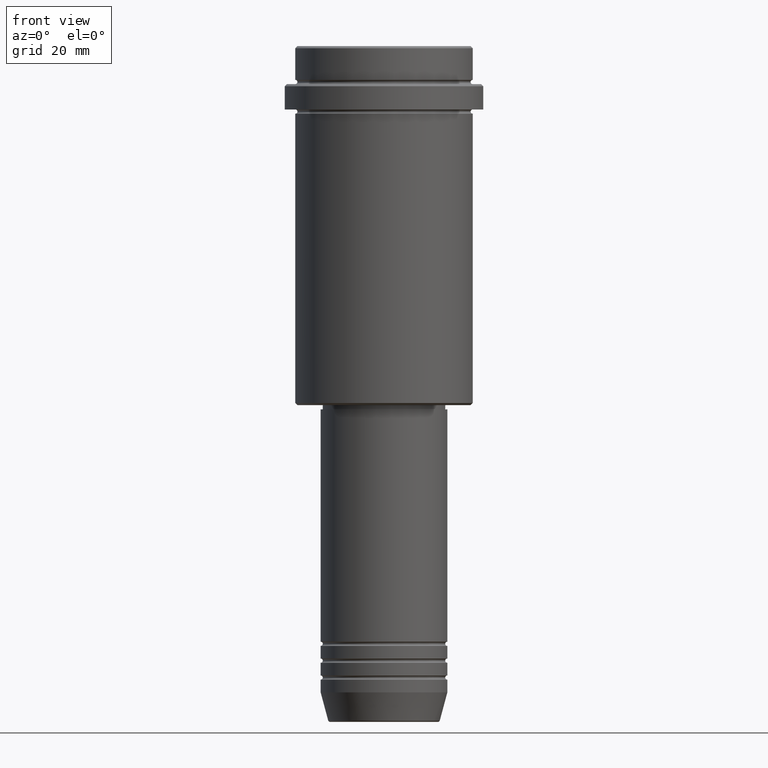
[diagram: clean part render]
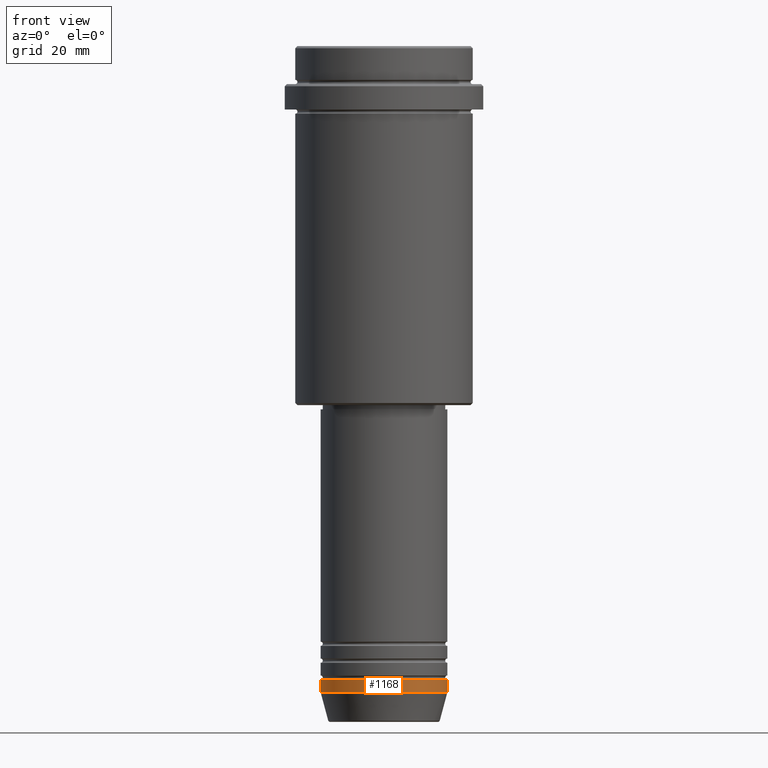
[diagram: same view with one face highlighted and labeled with its STEP entity id]
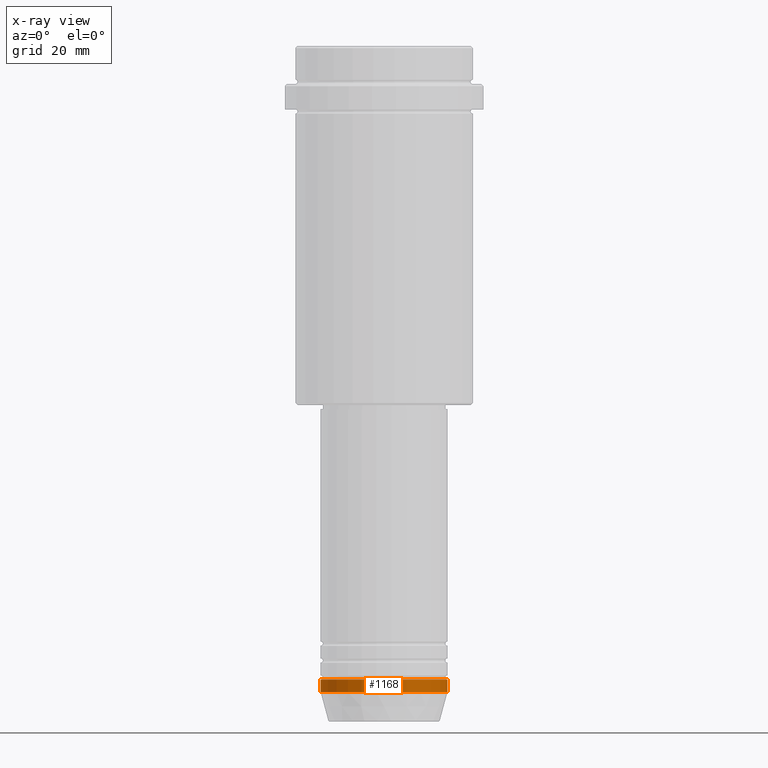
[diagram: x-ray of the same camera — body ghosted, the highlighted face saturated]
A machine part, front view. The second image highlights one B-rep face of the part: STEP entity #1168.
The next image is the same camera in x-ray: the body ghosted, the highlighted face saturated — about 0% of this face is hidden behind the body in this view.
In plain terms, the highlighted cylindrical surface (partial cylindrical patch) has radius 15 mm, axis along (-0, -0, 1).
Its self-contained STEP definition (entity closure, byte-faithful):
#32 = DIRECTION ( 'NONE',  ( -0.000000000000000000, -0.000000000000000000, 1.000000000000000000 ) ) ;
#59 = DIRECTION ( 'NONE',  ( -0.000000000000000000, -0.000000000000000000, 1.000000000000000000 ) ) ;
#63 = EDGE_CURVE ( 'NONE', #1213, #891, #1049, .T. ) ;
#92 = LINE ( 'NONE', #692, #181 ) ;
#131 = AXIS2_PLACEMENT_3D ( 'NONE', #1345, #798, #474 ) ;
#174 = DIRECTION ( 'NONE',  ( 1.000000000000000000, 0.000000000000000000, 0.000000000000000000 ) ) ;
#181 = VECTOR ( 'NONE', #32, 1000.000000000000000 ) ;
#236 = EDGE_CURVE ( 'NONE', #593, #458, #1331, .T. ) ;
#390 = EDGE_CURVE ( 'NONE', #1213, #593, #503, .T. ) ;
#427 = EDGE_CURVE ( 'NONE', #891, #458, #92, .T. ) ;
#437 = ORIENTED_EDGE ( 'NONE', *, *, #427, .T. ) ;
#458 = VERTEX_POINT ( 'NONE', #909 ) ;
#474 = DIRECTION ( 'NONE',  ( 1.000000000000000000, 0.000000000000000000, 0.000000000000000000 ) ) ;
#503 = LINE ( 'NONE', #1295, #1212 ) ;
#574 = ORIENTED_EDGE ( 'NONE', *, *, #236, .F. ) ;
#593 = VERTEX_POINT ( 'NONE', #1122 ) ;
#676 = ORIENTED_EDGE ( 'NONE', *, *, #63, .T. ) ;
#692 = CARTESIAN_POINT ( 'NONE',  ( 15.00000000000000000, 0.000000000000000000, 0.000000000000000000 ) ) ;
#798 = DIRECTION ( 'NONE',  ( -0.000000000000000000, -0.000000000000000000, 1.000000000000000000 ) ) ;
#813 = CYLINDRICAL_SURFACE ( 'NONE', #1099, 15.00000000000000000 ) ;
#891 = VERTEX_POINT ( 'NONE', #1200 ) ;
#909 = CARTESIAN_POINT ( 'NONE',  ( 15.00000000000000000, 0.000000000000000000, -150.0000000000000000 ) ) ;
#937 = CARTESIAN_POINT ( 'NONE',  ( -15.00000000000000000, 1.836970198721029589E-15, -153.0000000000000000 ) ) ;
#940 = DIRECTION ( 'NONE',  ( -0.000000000000000000, -0.000000000000000000, 1.000000000000000000 ) ) ;
#944 = FACE_OUTER_BOUND ( 'NONE', #960, .T. ) ;
#957 = AXIS2_PLACEMENT_3D ( 'NONE', #1268, #1154, #174 ) ;
#960 = EDGE_LOOP ( 'NONE', ( #1379, #676, #437, #574 ) ) ;
#1049 = CIRCLE ( 'NONE', #957, 15.00000000000000000 ) ;
#1099 = AXIS2_PLACEMENT_3D ( 'NONE', #1389, #59, #1292 ) ;
#1122 = CARTESIAN_POINT ( 'NONE',  ( -15.00000000000000000, 1.836970198721029589E-15, -150.0000000000000000 ) ) ;
#1154 = DIRECTION ( 'NONE',  ( -0.000000000000000000, -0.000000000000000000, 1.000000000000000000 ) ) ;
#1168 = ADVANCED_FACE ( 'NONE', ( #944 ), #813, .T. ) ;
#1200 = CARTESIAN_POINT ( 'NONE',  ( 15.00000000000000000, 0.000000000000000000, -153.0000000000000000 ) ) ;
#1212 = VECTOR ( 'NONE', #940, 1000.000000000000000 ) ;
#1213 = VERTEX_POINT ( 'NONE', #937 ) ;
#1268 = CARTESIAN_POINT ( 'NONE',  ( 0.000000000000000000, 0.000000000000000000, -153.0000000000000000 ) ) ;
#1292 = DIRECTION ( 'NONE',  ( 1.000000000000000000, 0.000000000000000000, 0.000000000000000000 ) ) ;
#1295 = CARTESIAN_POINT ( 'NONE',  ( -15.00000000000000000, 1.836970198721029589E-15, 0.000000000000000000 ) ) ;
#1331 = CIRCLE ( 'NONE', #131, 15.00000000000000000 ) ;
#1345 = CARTESIAN_POINT ( 'NONE',  ( 0.000000000000000000, 0.000000000000000000, -150.0000000000000000 ) ) ;
#1379 = ORIENTED_EDGE ( 'NONE', *, *, #390, .F. ) ;
#1389 = CARTESIAN_POINT ( 'NONE',  ( 0.000000000000000000, 0.000000000000000000, 0.000000000000000000 ) ) ;